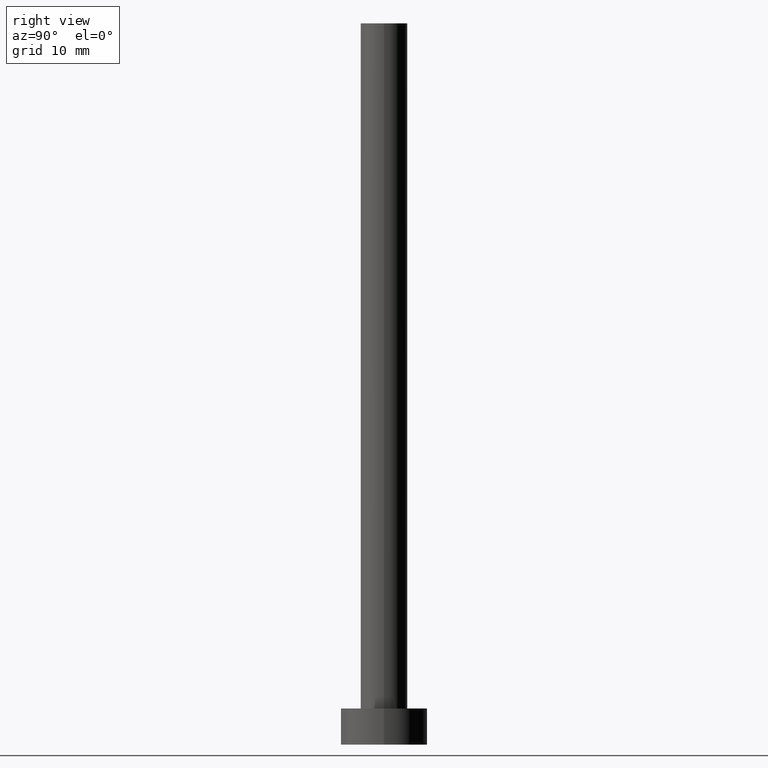
[diagram: clean part render]
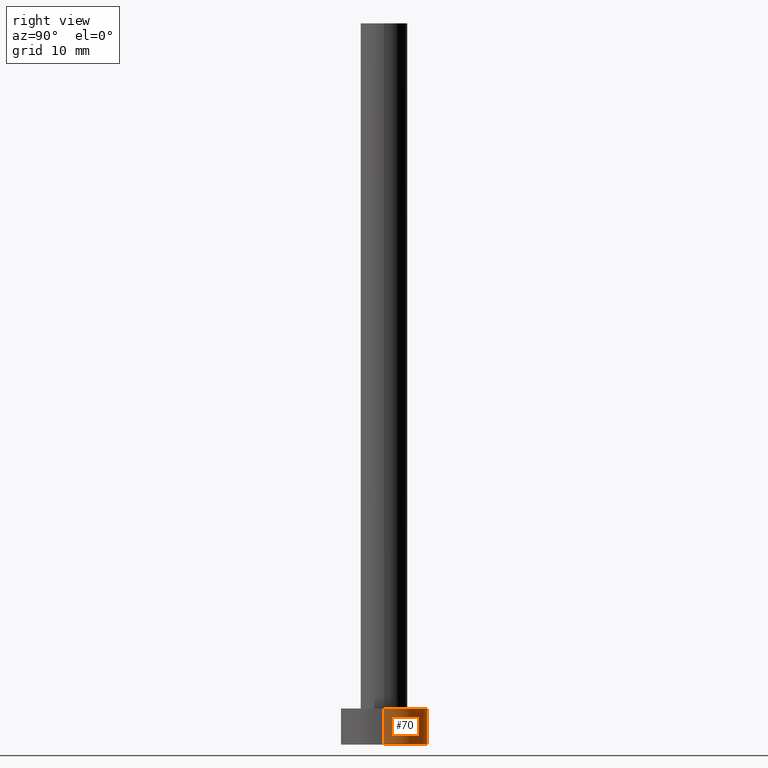
[diagram: same view with one face highlighted and labeled with its STEP entity id]
A machine part, right view. The second image highlights one B-rep face of the part: STEP entity #70.
In plain terms, the highlighted cylindrical surface (partial cylindrical patch) has radius 6 mm, axis along (-0, -0, -1).
Its self-contained STEP definition (entity closure, byte-faithful):
#6 = EDGE_CURVE ( 'NONE', #146, #242, #198, .T. ) ;
#13 = DIRECTION ( 'NONE',  ( -0.000000000000000000, -0.000000000000000000, -1.000000000000000000 ) ) ;
#23 = CARTESIAN_POINT ( 'NONE',  ( -6.000000000000000888, 0.000000000000000000, 5.000000000000000000 ) ) ;
#32 = DIRECTION ( 'NONE',  ( 0.000000000000000000, 0.000000000000000000, 1.000000000000000000 ) ) ;
#46 = ORIENTED_EDGE ( 'NONE', *, *, #171, .T. ) ;
#48 = CARTESIAN_POINT ( 'NONE',  ( 6.000000000000000888, 7.347880794884120722E-16, 0.000000000000000000 ) ) ;
#50 = LINE ( 'NONE', #190, #192 ) ;
#53 = CIRCLE ( 'NONE', #223, 6.000000000000000888 ) ;
#61 = EDGE_LOOP ( 'NONE', ( #129, #46, #253, #217 ) ) ;
#62 = AXIS2_PLACEMENT_3D ( 'NONE', #236, #99, #201 ) ;
#70 = ADVANCED_FACE ( 'NONE', ( #202 ), #220, .T. ) ;
#75 = CARTESIAN_POINT ( 'NONE',  ( 6.000000000000000888, 7.347880794884120722E-16, 5.000000000000000000 ) ) ;
#86 = VERTEX_POINT ( 'NONE', #23 ) ;
#99 = DIRECTION ( 'NONE',  ( -0.000000000000000000, -0.000000000000000000, -1.000000000000000000 ) ) ;
#114 = CARTESIAN_POINT ( 'NONE',  ( 0.000000000000000000, 0.000000000000000000, 5.000000000000000000 ) ) ;
#128 = DIRECTION ( 'NONE',  ( 0.000000000000000000, 0.000000000000000000, 1.000000000000000000 ) ) ;
#129 = ORIENTED_EDGE ( 'NONE', *, *, #233, .F. ) ;
#132 = VECTOR ( 'NONE', #225, 1000.000000000000000 ) ;
#146 = VERTEX_POINT ( 'NONE', #48 ) ;
#148 = DIRECTION ( 'NONE',  ( 1.000000000000000000, 0.000000000000000000, 0.000000000000000000 ) ) ;
#156 = CARTESIAN_POINT ( 'NONE',  ( 6.000000000000000888, 7.347880794884120722E-16, 5.000000000000000000 ) ) ;
#170 = CARTESIAN_POINT ( 'NONE',  ( 0.000000000000000000, 0.000000000000000000, 0.000000000000000000 ) ) ;
#171 = EDGE_CURVE ( 'NONE', #200, #146, #172, .T. ) ;
#172 = LINE ( 'NONE', #75, #132 ) ;
#188 = CARTESIAN_POINT ( 'NONE',  ( -6.000000000000000888, 0.000000000000000000, 0.000000000000000000 ) ) ;
#190 = CARTESIAN_POINT ( 'NONE',  ( -6.000000000000000888, 0.000000000000000000, 5.000000000000000000 ) ) ;
#192 = VECTOR ( 'NONE', #13, 1000.000000000000000 ) ;
#197 = AXIS2_PLACEMENT_3D ( 'NONE', #170, #128, #148 ) ;
#198 = CIRCLE ( 'NONE', #197, 6.000000000000000888 ) ;
#200 = VERTEX_POINT ( 'NONE', #156 ) ;
#201 = DIRECTION ( 'NONE',  ( -1.000000000000000000, 0.000000000000000000, 0.000000000000000000 ) ) ;
#202 = FACE_OUTER_BOUND ( 'NONE', #61, .T. ) ;
#217 = ORIENTED_EDGE ( 'NONE', *, *, #246, .F. ) ;
#220 = CYLINDRICAL_SURFACE ( 'NONE', #62, 6.000000000000000888 ) ;
#223 = AXIS2_PLACEMENT_3D ( 'NONE', #114, #32, #229 ) ;
#225 = DIRECTION ( 'NONE',  ( -0.000000000000000000, -0.000000000000000000, -1.000000000000000000 ) ) ;
#229 = DIRECTION ( 'NONE',  ( 1.000000000000000000, 0.000000000000000000, 0.000000000000000000 ) ) ;
#233 = EDGE_CURVE ( 'NONE', #200, #86, #53, .T. ) ;
#236 = CARTESIAN_POINT ( 'NONE',  ( 0.000000000000000000, 0.000000000000000000, 5.000000000000000000 ) ) ;
#242 = VERTEX_POINT ( 'NONE', #188 ) ;
#246 = EDGE_CURVE ( 'NONE', #86, #242, #50, .T. ) ;
#253 = ORIENTED_EDGE ( 'NONE', *, *, #6, .T. ) ;